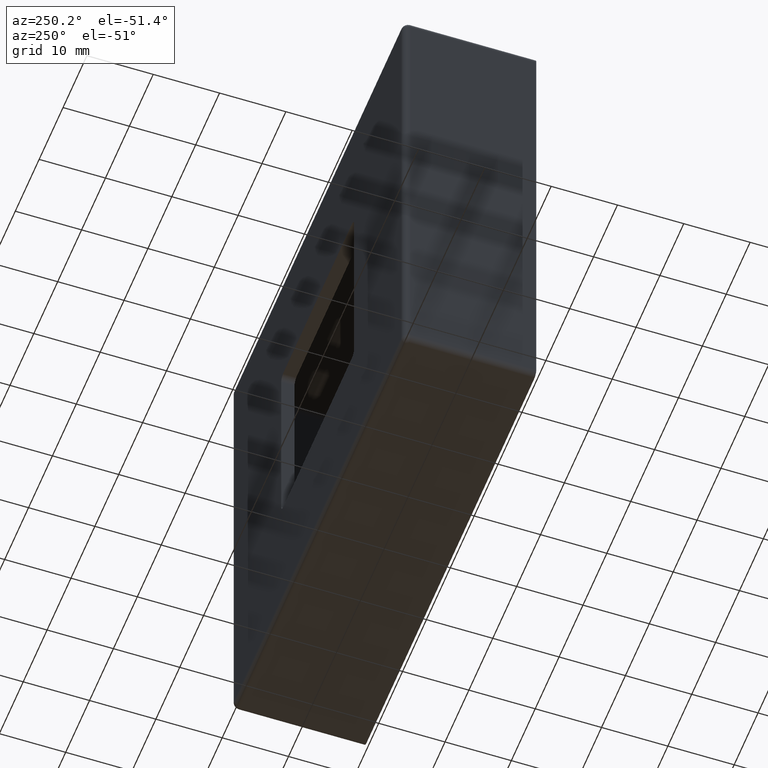
[diagram: clean part render]
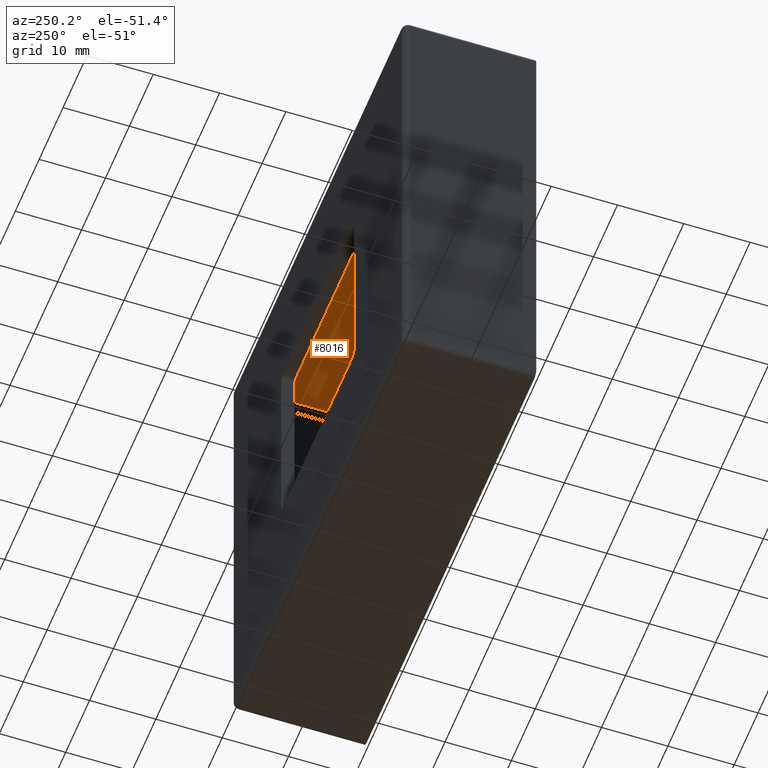
[diagram: same view with one face highlighted and labeled with its STEP entity id]
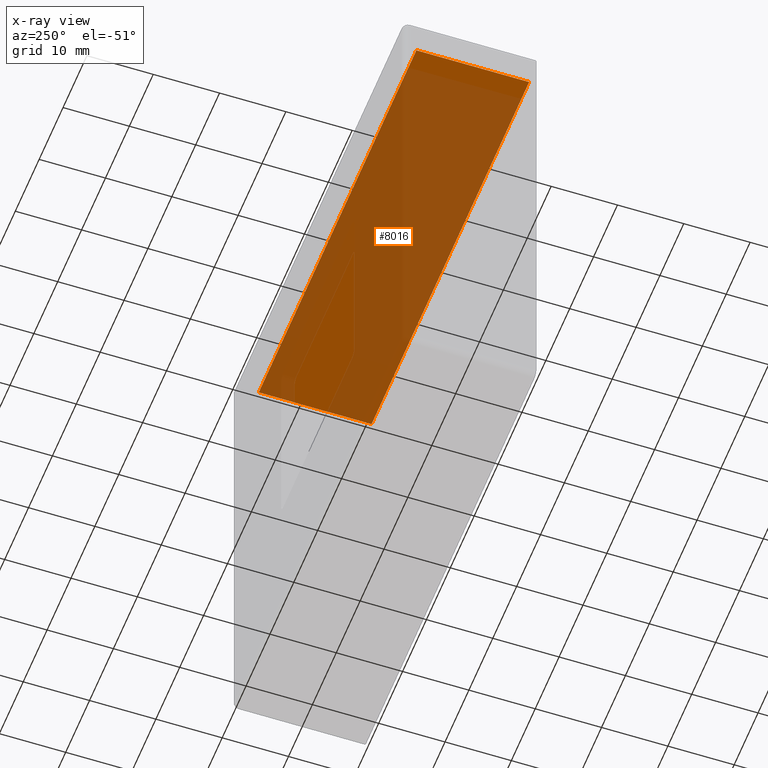
[diagram: x-ray of the same camera — body ghosted, the highlighted face saturated]
A machine part, auxiliary view. The second image highlights one B-rep face of the part: STEP entity #8016.
The next image is the same camera in x-ray: the body ghosted, the highlighted face saturated — about 84% of this face is hidden behind the body in this view.
In plain terms, the highlighted planar face has unit normal (0, 0, -1).
Its self-contained STEP definition (entity closure, byte-faithful):
#479 = CARTESIAN_POINT ( 'NONE',  ( -36.00000000000001421, 0.000000000000000000, 33.99999999999998579 ) ) ;
#1260 = VERTEX_POINT ( 'NONE', #4031 ) ;
#1383 = AXIS2_PLACEMENT_3D ( 'NONE', #5822, #8513, #5878 ) ;
#2299 = CARTESIAN_POINT ( 'NONE',  ( 32.99999999999997868, 0.000000000000000000, 33.99999999999998579 ) ) ;
#2371 = LINE ( 'NONE', #16591, #16837 ) ;
#2641 = EDGE_CURVE ( 'NONE', #13389, #11689, #6029, .T. ) ;
#3422 = EDGE_LOOP ( 'NONE', ( #3512, #10106, #4587, #7643 ) ) ;
#3512 = ORIENTED_EDGE ( 'NONE', *, *, #8614, .T. ) ;
#4031 = CARTESIAN_POINT ( 'NONE',  ( -33.00000000000000711, 0.000000000000000000, 33.99999999999998579 ) ) ;
#4564 = CARTESIAN_POINT ( 'NONE',  ( 32.99999999999997868, 17.00000000000000000, 33.99999999999998579 ) ) ;
#4587 = ORIENTED_EDGE ( 'NONE', *, *, #13058, .F. ) ;
#5463 = DIRECTION ( 'NONE',  ( -0.000000000000000000, 1.000000000000000000, -0.000000000000000000 ) ) ;
#5822 = CARTESIAN_POINT ( 'NONE',  ( -36.00000000000001421, 20.00000000000000000, 33.99999999999998579 ) ) ;
#5878 = DIRECTION ( 'NONE',  ( -1.000000000000000000, 0.000000000000000000, -0.000000000000000000 ) ) ;
#6029 = LINE ( 'NONE', #16460, #8656 ) ;
#6165 = FACE_OUTER_BOUND ( 'NONE', #3422, .T. ) ;
#6527 = DIRECTION ( 'NONE',  ( 1.000000000000000000, -0.000000000000000000, 0.000000000000000000 ) ) ;
#7643 = ORIENTED_EDGE ( 'NONE', *, *, #11037, .T. ) ;
#8016 = ADVANCED_FACE ( 'NONE', ( #6165 ), #14205, .T. ) ;
#8513 = DIRECTION ( 'NONE',  ( 0.000000000000000000, 0.000000000000000000, -1.000000000000000000 ) ) ;
#8614 = EDGE_CURVE ( 'NONE', #10298, #13389, #14256, .T. ) ;
#8656 = VECTOR ( 'NONE', #17934, 1000.000000000000000 ) ;
#10106 = ORIENTED_EDGE ( 'NONE', *, *, #2641, .T. ) ;
#10298 = VERTEX_POINT ( 'NONE', #12971 ) ;
#10772 = VECTOR ( 'NONE', #6527, 1000.000000000000000 ) ;
#11037 = EDGE_CURVE ( 'NONE', #1260, #10298, #2371, .T. ) ;
#11689 = VERTEX_POINT ( 'NONE', #2299 ) ;
#12004 = VECTOR ( 'NONE', #13220, 1000.000000000000000 ) ;
#12971 = CARTESIAN_POINT ( 'NONE',  ( -33.00000000000000711, 17.00000000000000000, 33.99999999999998579 ) ) ;
#13058 = EDGE_CURVE ( 'NONE', #1260, #11689, #14815, .T. ) ;
#13220 = DIRECTION ( 'NONE',  ( 1.000000000000000000, -0.000000000000000000, 0.000000000000000000 ) ) ;
#13389 = VERTEX_POINT ( 'NONE', #4564 ) ;
#14205 = PLANE ( 'NONE',  #1383 ) ;
#14256 = LINE ( 'NONE', #14898, #10772 ) ;
#14815 = LINE ( 'NONE', #479, #12004 ) ;
#14898 = CARTESIAN_POINT ( 'NONE',  ( -36.00000000000001421, 17.00000000000000000, 33.99999999999998579 ) ) ;
#16460 = CARTESIAN_POINT ( 'NONE',  ( 32.99999999999997868, 0.000000000000000000, 33.99999999999998579 ) ) ;
#16591 = CARTESIAN_POINT ( 'NONE',  ( -33.00000000000000711, 18.00000000000000355, 33.99999999999998579 ) ) ;
#16837 = VECTOR ( 'NONE', #5463, 1000.000000000000000 ) ;
#17934 = DIRECTION ( 'NONE',  ( 0.000000000000000000, -1.000000000000000000, 0.000000000000000000 ) ) ;